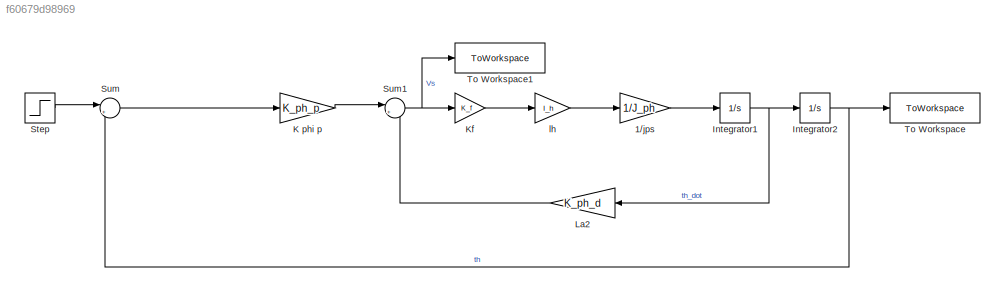
MODEL slx_f60679d98969
KIND model
CONFIG AbsTol = auto
CONFIG EnableMultiTasking = off
CONFIG FixedStep = auto
CONFIG MaxStep = auto
CONFIG MinStep = auto
CONFIG RelTol = 1e-3
CONFIG SampleTimeConstraint = Unconstrained
CONFIG SolverName = VariableStepAuto
CONFIG StartTime = 0.0
CONFIG StopTime = 20
BLOCK [Gain] 1//jps
  Gain = 1/J_ph
BLOCK [Integrator] Integrator1
  Ports = [1, 1]
BLOCK [Integrator] Integrator2
  Ports = [1, 1]
BLOCK [Gain] K phi p
  Gain = K_ph_p
BLOCK [Gain] Kf
  Gain = K_f
BLOCK [Gain] La2
  Gain = K_ph_d
  NameLocation = top
BLOCK [Step] Step
  After = deg2rad(10)
  SampleTime = 0.01
  Time = 0
BLOCK [Sum] Sum
  Inputs = |+-
  Ports = [2, 1]
BLOCK [Sum] Sum1
  Inputs = |+-
  Ports = [2, 1]
BLOCK [ToWorkspace] To Workspace
  FixptAsFi = on
  MaxDataPoints = inf
  Ports = [1]
  SampleTime = -1
  VariableName = roll_out
BLOCK [ToWorkspace] To Workspace1
  FixptAsFi = on
  MaxDataPoints = inf
  Ports = [1]
  SampleTime = -1
  VariableName = roll_Vs
BLOCK [Gain] lh
  Gain = l_h
LINE 1//jps:1 -> Integrator1:1
NET Integrator1:1 -> Integrator2:1, La2:1
NET Integrator2:1 -> Sum:2, To Workspace:1
LINE K phi p:1 -> Sum1:1
LINE Kf:1 -> lh:1
LINE La2:1 -> Sum1:2
LINE Step:1 -> Sum:1
NET Sum1:1 -> Kf:1, To Workspace1:1
LINE Sum:1 -> K phi p:1
LINE lh:1 -> 1//jps:1
note: NET lines group one-source signal fan-out (src -> all destinations, sorted); 1:1 wires keep LINE
